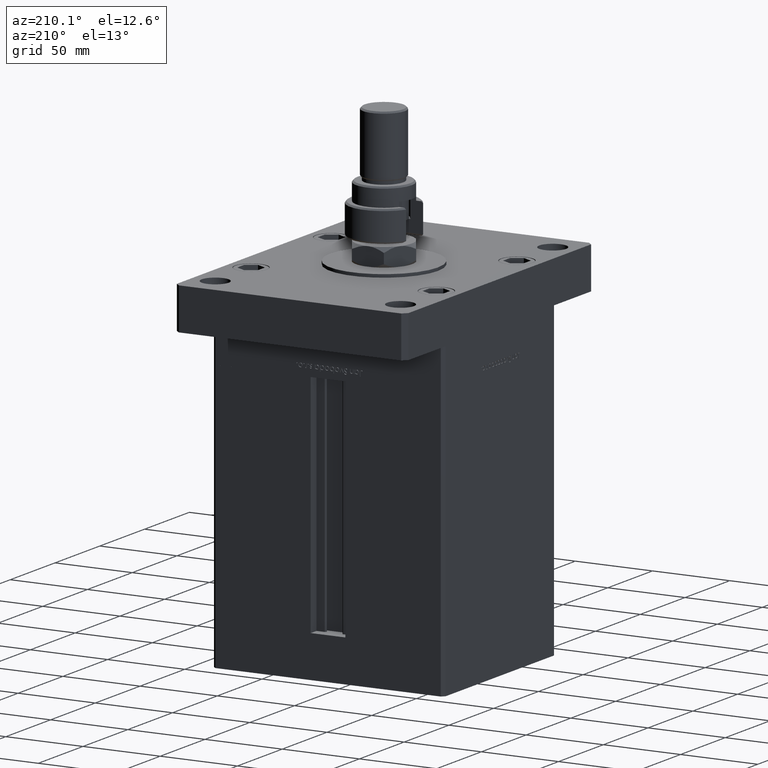
[diagram: clean part render]
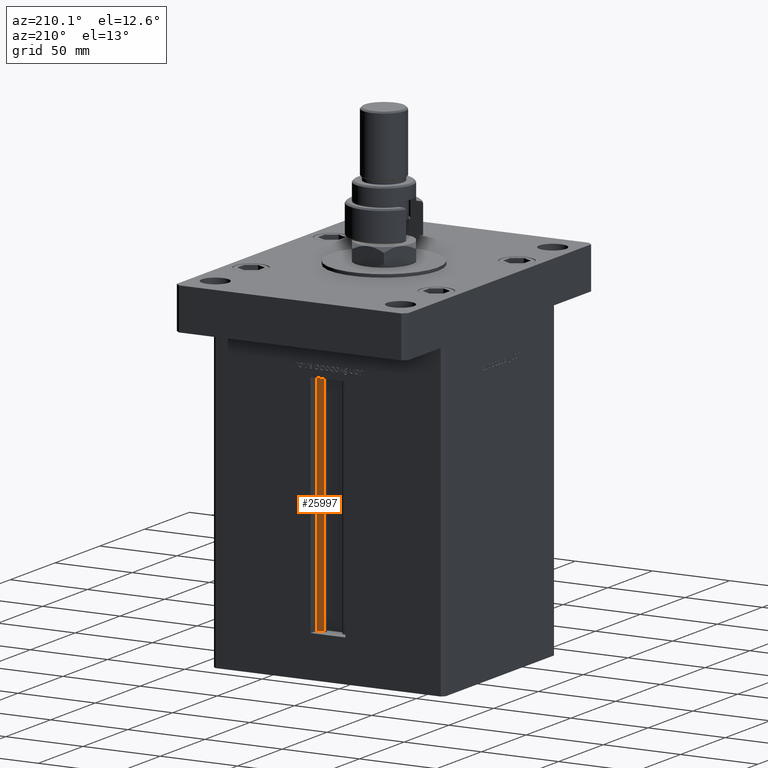
[diagram: same view with one face highlighted and labeled with its STEP entity id]
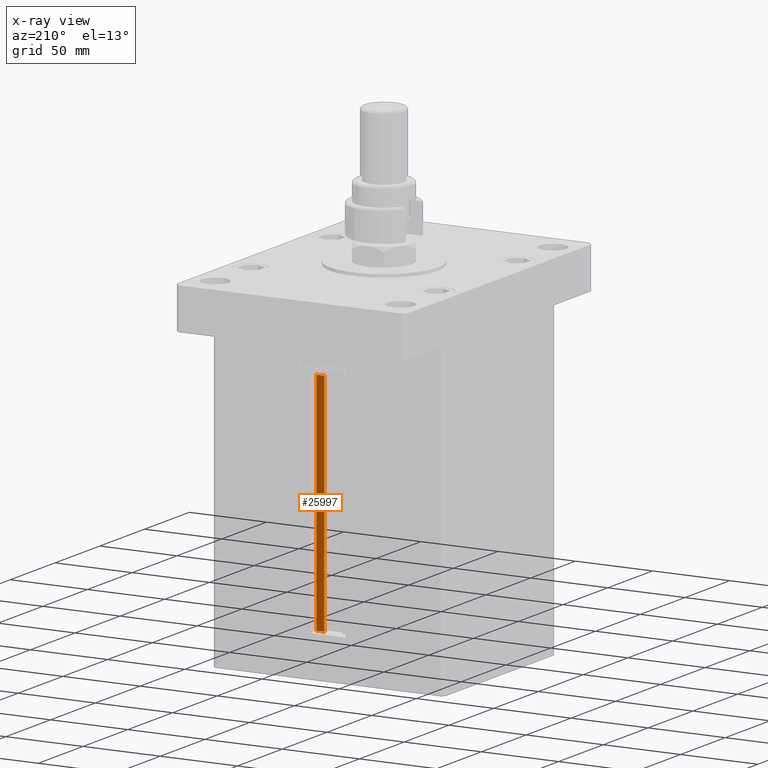
[diagram: x-ray of the same camera — body ghosted, the highlighted face saturated]
A machine part, auxiliary view. The second image highlights one B-rep face of the part: STEP entity #25997.
The next image is the same camera in x-ray: the body ghosted, the highlighted face saturated — about 0% of this face is hidden behind the body in this view.
In plain terms, the highlighted planar face has unit normal (0, -1, 0).
Its self-contained STEP definition (entity closure, byte-faithful):
#28 = EDGE_CURVE ( 'NONE', #30309, #52039, #666, .T. ) ;
#666 = LINE ( 'NONE', #35458, #3063 ) ;
#3063 = VECTOR ( 'NONE', #46275, 1000.000000000000000 ) ;
#8008 = CARTESIAN_POINT ( 'NONE',  ( 6.183333333334001480, 55.99999999999999289, 147.0000000000000000 ) ) ;
#8397 = CARTESIAN_POINT ( 'NONE',  ( 6.183333333334001480, 55.99999999999999289, 0.000000000000000000 ) ) ;
#10829 = ORIENTED_EDGE ( 'NONE', *, *, #19097, .F. ) ;
#10848 = VECTOR ( 'NONE', #42691, 1000.000000000000000 ) ;
#11876 = VERTEX_POINT ( 'NONE', #8397 ) ;
#12145 = LINE ( 'NONE', #25542, #10848 ) ;
#12883 = CARTESIAN_POINT ( 'NONE',  ( 6.183333333334001480, 55.99999999999999289, 0.000000000000000000 ) ) ;
#13438 = DIRECTION ( 'NONE',  ( 0.000000000000000000, -1.000000000000000000, 0.000000000000000000 ) ) ;
#14588 = ORIENTED_EDGE ( 'NONE', *, *, #28, .F. ) ;
#14897 = VERTEX_POINT ( 'NONE', #8008 ) ;
#19097 = EDGE_CURVE ( 'NONE', #52039, #14897, #12145, .T. ) ;
#21112 = EDGE_LOOP ( 'NONE', ( #14588, #44642, #50306, #10829 ) ) ;
#21432 = PLANE ( 'NONE',  #49387 ) ;
#23652 = EDGE_CURVE ( 'NONE', #11876, #14897, #44373, .T. ) ;
#24360 = CARTESIAN_POINT ( 'NONE',  ( 6.183333333334001480, 55.99999999999999289, 0.000000000000000000 ) ) ;
#25542 = CARTESIAN_POINT ( 'NONE',  ( 0.000000000000000000, 55.99999999999999289, 147.0000000000000000 ) ) ;
#25997 = ADVANCED_FACE ( 'NONE', ( #43421 ), #21432, .F. ) ;
#28362 = DIRECTION ( 'NONE',  ( 1.000000000000000000, 0.000000000000000000, 0.000000000000000000 ) ) ;
#30309 = VERTEX_POINT ( 'NONE', #40115 ) ;
#31506 = DIRECTION ( 'NONE',  ( -0.000000000000000000, -0.000000000000000000, 1.000000000000000000 ) ) ;
#33815 = VECTOR ( 'NONE', #31506, 1000.000000000000000 ) ;
#35458 = CARTESIAN_POINT ( 'NONE',  ( 11.25000000000000178, 55.99999999999999289, 0.000000000000000000 ) ) ;
#40115 = CARTESIAN_POINT ( 'NONE',  ( 11.25000000000000178, 55.99999999999999289, 0.000000000000000000 ) ) ;
#42691 = DIRECTION ( 'NONE',  ( -1.000000000000000000, 0.000000000000000000, 0.000000000000000000 ) ) ;
#43421 = FACE_OUTER_BOUND ( 'NONE', #21112, .T. ) ;
#44373 = LINE ( 'NONE', #48662, #33815 ) ;
#44642 = ORIENTED_EDGE ( 'NONE', *, *, #54845, .F. ) ;
#45781 = CARTESIAN_POINT ( 'NONE',  ( 11.25000000000000178, 55.99999999999999289, 147.0000000000000000 ) ) ;
#46275 = DIRECTION ( 'NONE',  ( -0.000000000000000000, -0.000000000000000000, 1.000000000000000000 ) ) ;
#48662 = CARTESIAN_POINT ( 'NONE',  ( 6.183333333334001480, 55.99999999999999289, 0.000000000000000000 ) ) ;
#49387 = AXIS2_PLACEMENT_3D ( 'NONE', #12883, #13438, #52558 ) ;
#50306 = ORIENTED_EDGE ( 'NONE', *, *, #23652, .T. ) ;
#52039 = VERTEX_POINT ( 'NONE', #45781 ) ;
#52558 = DIRECTION ( 'NONE',  ( 0.000000000000000000, -0.000000000000000000, -1.000000000000000000 ) ) ;
#54650 = LINE ( 'NONE', #24360, #56315 ) ;
#54845 = EDGE_CURVE ( 'NONE', #11876, #30309, #54650, .T. ) ;
#56315 = VECTOR ( 'NONE', #28362, 1000.000000000000000 ) ;